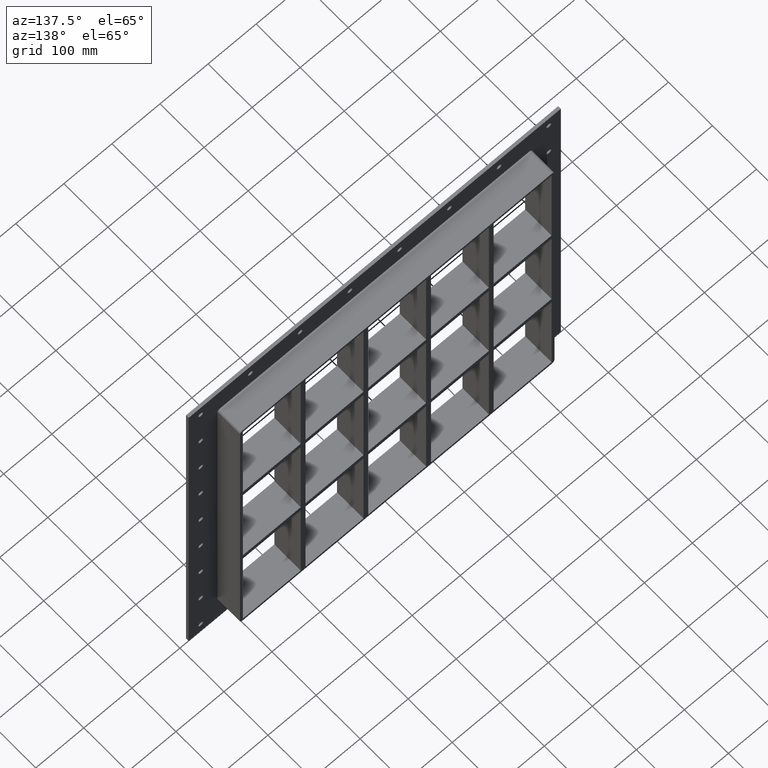
[diagram: clean part render]
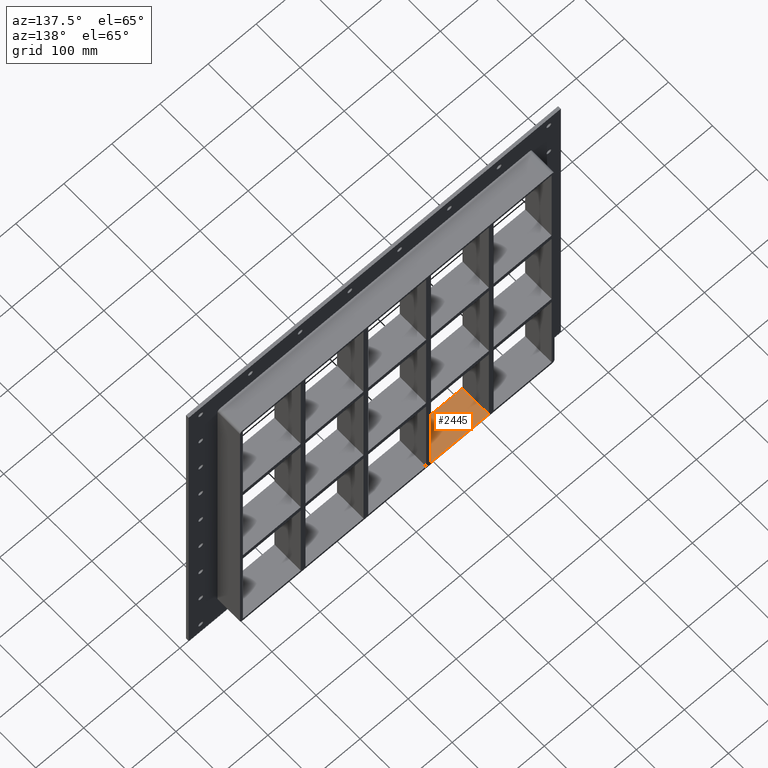
[diagram: same view with one face highlighted and labeled with its STEP entity id]
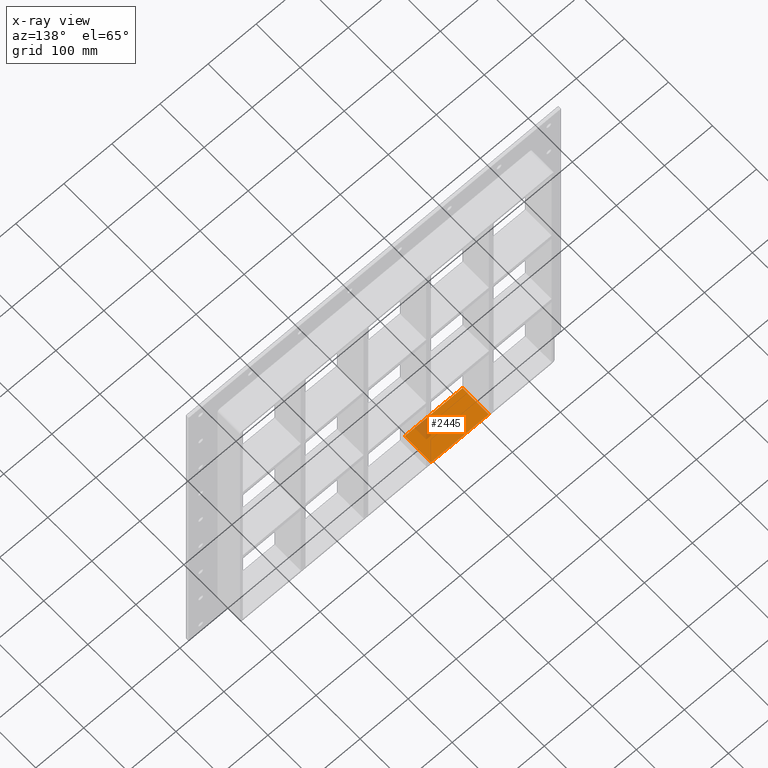
[diagram: x-ray of the same camera — body ghosted, the highlighted face saturated]
A machine part, auxiliary view. The second image highlights one B-rep face of the part: STEP entity #2445.
The next image is the same camera in x-ray: the body ghosted, the highlighted face saturated — about 8% of this face is hidden behind the body in this view.
In plain terms, the highlighted planar face has unit normal (0, 0, -1).
Its self-contained STEP definition (entity closure, byte-faithful):
#1944=CARTESIAN_POINT('',(-70.250000000001307,57.0,-339.00000000000006));
#1945=VERTEX_POINT('',#1944);
#1962=CARTESIAN_POINT('',(-190.75000000000728,57.0,-338.99999999998431));
#1963=VERTEX_POINT('',#1962);
#1970=CARTESIAN_POINT('',(-190.75000000000728,57.0,-339.00000000000006));
#1971=DIRECTION('',(1.0,0.0,0.0));
#1972=VECTOR('',#1971,120.50000000000597);
#1973=LINE('',#1970,#1972);
#1974=EDGE_CURVE('',#1963,#1945,#1973,.T.);
#2350=CARTESIAN_POINT('',(-70.250000000001307,-3.0,-339.00000000000006));
#2351=VERTEX_POINT('',#2350);
#2352=CARTESIAN_POINT('',(-70.250000000001322,-3.0,-339.00000000000006));
#2353=DIRECTION('',(0.0,1.0,0.0));
#2354=VECTOR('',#2353,60.000000000000007);
#2355=LINE('',#2352,#2354);
#2356=EDGE_CURVE('',#2351,#1945,#2355,.T.);
#2422=CARTESIAN_POINT('',(321.25,0.0,-339.00000000000006));
#2423=DIRECTION('',(0.0,0.0,-1.0));
#2424=DIRECTION('',(-1.0,0.0,0.0));
#2425=AXIS2_PLACEMENT_3D('',#2422,#2423,#2424);
#2426=PLANE('',#2425);
#2427=ORIENTED_EDGE('',*,*,#2356,.T.);
#2428=ORIENTED_EDGE('',*,*,#1974,.F.);
#2429=CARTESIAN_POINT('',(-190.75000000000728,-3.0,-338.99999999998431));
#2430=VERTEX_POINT('',#2429);
#2431=CARTESIAN_POINT('',(-190.75000000000728,57.000000000000007,-339.00000000000006));
#2432=DIRECTION('',(0.0,-1.0,0.0));
#2433=VECTOR('',#2432,60.000000000000007);
#2434=LINE('',#2431,#2433);
#2435=EDGE_CURVE('',#1963,#2430,#2434,.T.);
#2436=ORIENTED_EDGE('',*,*,#2435,.T.);
#2437=CARTESIAN_POINT('',(-70.250000000001307,-3.0,-339.00000000000006));
#2438=DIRECTION('',(-1.0,0.0,0.0));
#2439=VECTOR('',#2438,120.50000000000597);
#2440=LINE('',#2437,#2439);
#2441=EDGE_CURVE('',#2351,#2430,#2440,.T.);
#2442=ORIENTED_EDGE('',*,*,#2441,.F.);
#2443=EDGE_LOOP('',(#2427,#2428,#2436,#2442));
#2444=FACE_OUTER_BOUND('',#2443,.T.);
#2445=ADVANCED_FACE('',(#2444),#2426,.F.);